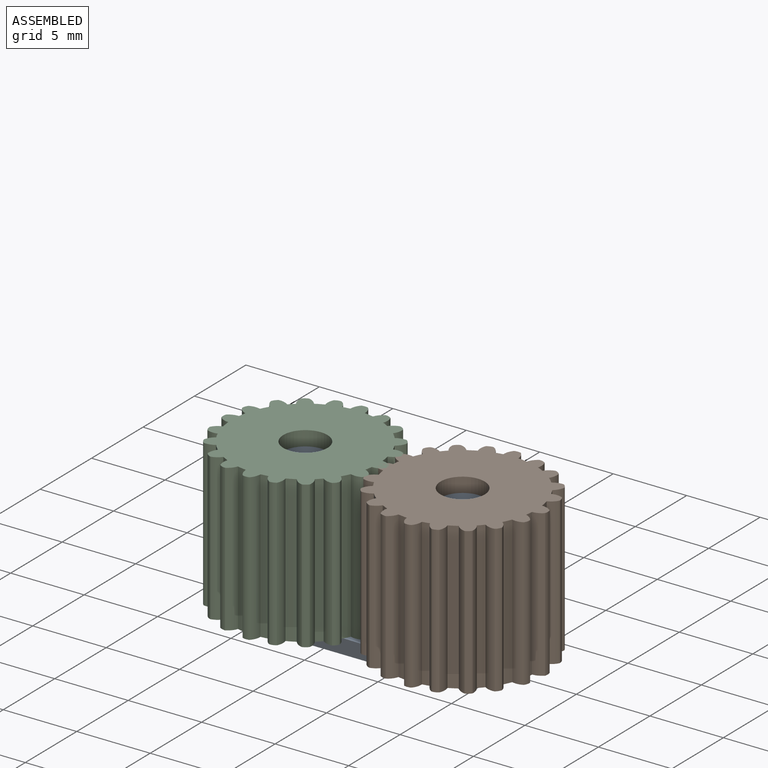
[diagram: assembled view]
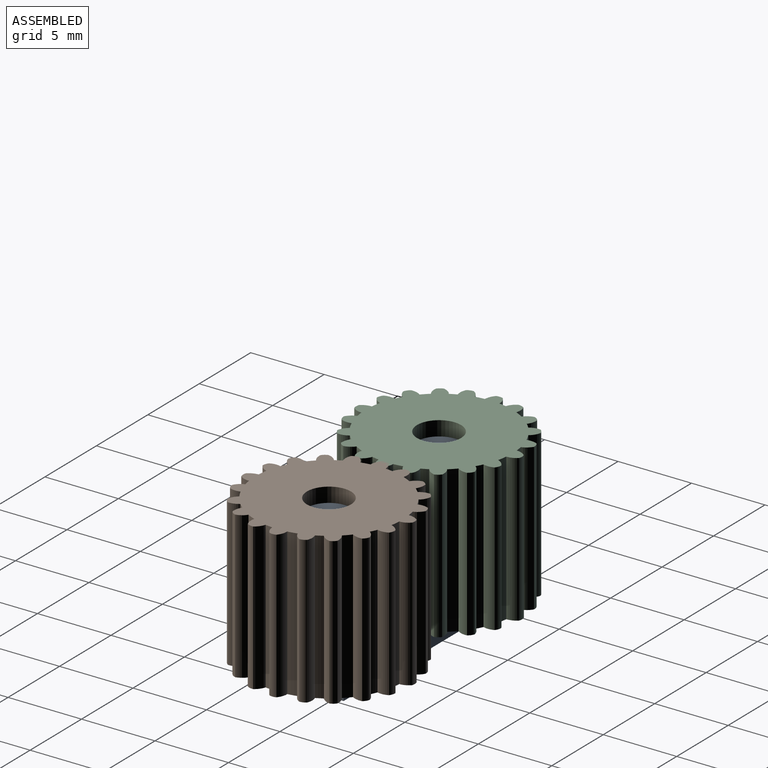
[diagram: assembled view, second angle]
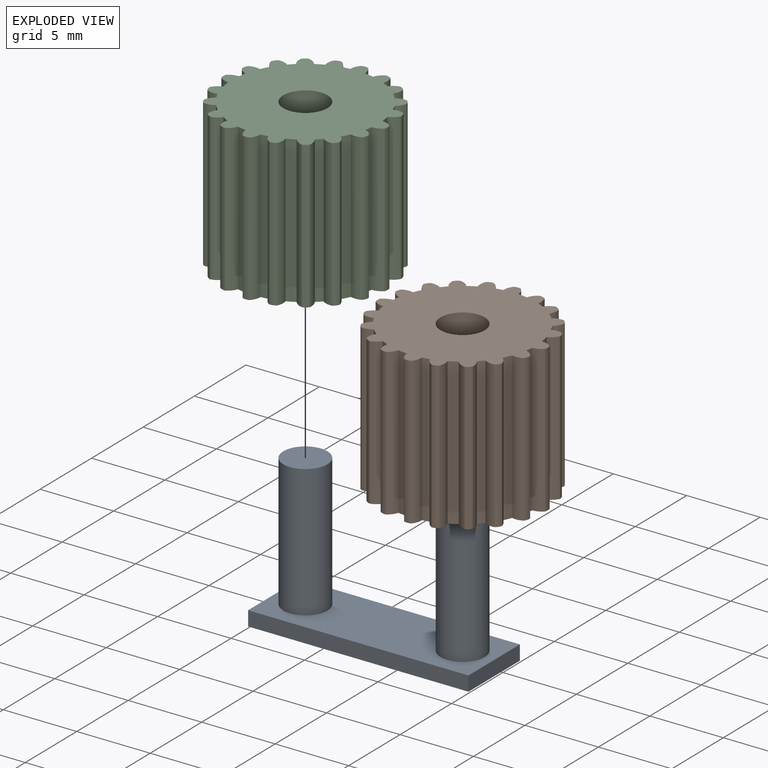
[diagram: exploded view]
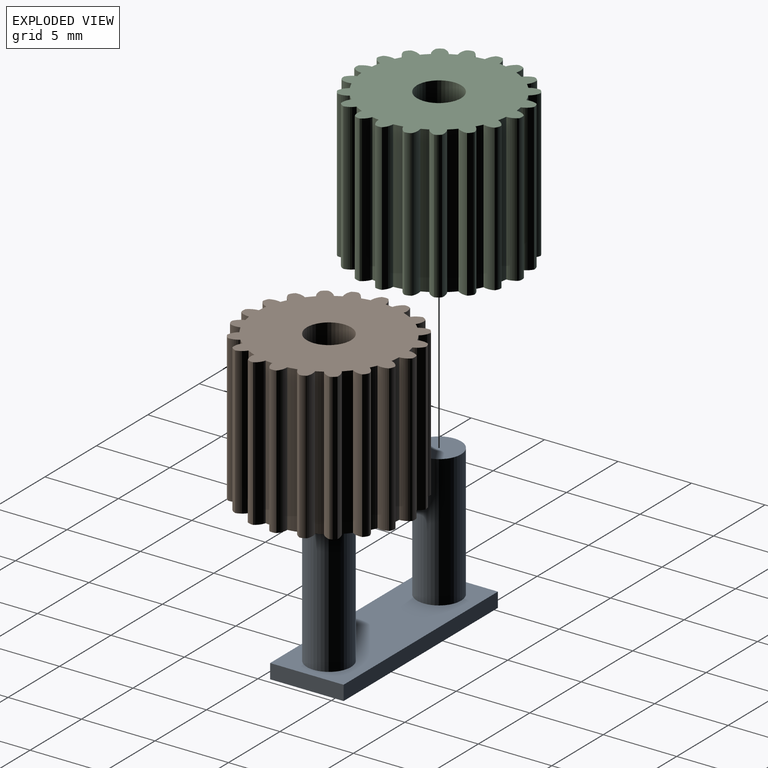
[diagram: exploded view, second angle]
ASSEMBLY  parts=3 mates=2
PART A: 10 faces, bbox 15x5x10 mm
  f0: plane 15x1mm, normal (0,1,0), area 15mm2, adj f1,f3,f4,f5
  f1: plane 5x1mm, normal (-1,0,0), area 5mm2, adj f0,f2,f4,f5
  f2: plane 15x1mm, normal (0,-1,0), area 15mm2, adj f1,f3,f4,f5
  f3: plane 5x1mm, normal (1,0,0), area 5mm2, adj f0,f2,f4,f5
  f4: plane 15x5mm, normal (0,0,1), area 60.9mm2, adj f0,f1,f2,f3,f6,f8
  f5: plane 15x5mm, normal (0,0,-1), area 75mm2, adj f0,f1,f2,f3
  f6: cylinder r=1.5mm len=9mm, axis (0,0,-1), area 84.8mm2, adj f4,f7
  f7: plane 3x3mm, normal (0,0,1), area 7.1mm2, adj f6
  f8: cylinder r=1.5mm len=9mm, axis (0,0,-1), area 84.8mm2, adj f4,f9
  f9: plane 3x3mm, normal (0,0,1), area 7.1mm2, adj f8
PART B: 83 faces, bbox 11.4x11.4x10 mm
  f0: cylinder r=5mm len=10mm, axis (0,0,-1), area 5mm2, adj f21,f22,f78,f80
  f1: cylinder r=5mm len=10mm, axis (0,0,-1), area 6.4mm2, adj f21,f22,f28,f79
  f2: cylinder r=5mm len=10mm, axis (0,0,-1), area 5mm2, adj f21,f22,f72,f74
  f3: cylinder r=5mm len=10mm, axis (0,0,-1), area 6.4mm2, adj f21,f22,f73,f82
  f4: cylinder r=5mm len=10mm, axis (0,0,-1), area 5mm2, adj f21,f22,f66,f68
  f5: cylinder r=5mm len=10mm, axis (0,0,-1), area 6.4mm2, adj f21,f22,f67,f76
  f6: cylinder r=5mm len=10mm, axis (0,0,-1), area 5mm2, adj f21,f22,f60,f62
  f7: cylinder r=5mm len=10mm, axis (0,0,-1), area 6.4mm2, adj f21,f22,f61,f70
  f8: cylinder r=5mm len=10mm, axis (0,0,-1), area 5mm2, adj f21,f22,f54,f56
  f9: cylinder r=5mm len=10mm, axis (0,0,-1), area 6.4mm2, adj f21,f22,f55,f64
  f10: cylinder r=5mm len=10mm, axis (0,0,-1), area 5mm2, adj f21,f22,f48,f50
  f11: cylinder r=5mm len=10mm, axis (0,0,-1), area 6.4mm2, adj f21,f22,f49,f58
  f12: cylinder r=5mm len=10mm, axis (0,0,-1), area 5mm2, adj f21,f22,f42,f44
  f13: cylinder r=5mm len=10mm, axis (0,0,-1), area 6.4mm2, adj f21,f22,f43,f52
  f14: cylinder r=5mm len=10mm, axis (0,0,-1), area 5mm2, adj f21,f22,f36,f38
  f15: cylinder r=5mm len=10mm, axis (0,0,-1), area 6.4mm2, adj f21,f22,f37,f46
  f16: cylinder r=5mm len=10mm, axis (0,0,-1), area 5mm2, adj f21,f22,f30,f32
  f17: cylinder r=5mm len=10mm, axis (0,0,-1), area 6.4mm2, adj f21,f22,f31,f40
  f18: cylinder r=5mm len=10mm, axis (0,0,-1), area 5mm2, adj f21,f22,f24,f26
  f19: cylinder r=5mm len=10mm, axis (0,0,-1), area 6.4mm2, adj f21,f22,f25,f34
  f20: cylinder r=1.5mm len=10mm, axis (0,0,-1), area 94.2mm2, adj f21,f22
  f21: plane 11.4x11.4mm, normal (0,0,1), area 82.8mm2, adj f0,f1,f2,f3,f4,f5,f6,f7
  f22: plane 11.4x11.4mm, normal (0,0,-1), area 82.8mm2, adj f0,f1,f2,f3,f4,f5,f6,f7
  f23: cylinder r=0.7mm len=10mm, axis (0,0,-1), area 4.6mm2, adj f21,f22,f24,f25
  f24: cylinder r=1mm len=10mm, axis (0,0,-1), area 7.6mm2, adj f18,f21,f22,f23
  f25: cylinder r=1mm len=10mm, axis (0,0,-1), area 7.6mm2, adj f19,f21,f22,f23
  f26: cylinder r=1mm len=10mm, axis (0,0,-1), area 7.6mm2, adj f18,f21,f22,f27
  f27: cylinder r=0.7mm len=10mm, axis (0,0,-1), area 4.6mm2, adj f21,f22,f26,f28
  f28: cylinder r=1mm len=10mm, axis (0,0,-1), area 7.6mm2, adj f1,f21,f22,f27
  f29: cylinder r=0.7mm len=10mm, axis (0,0,-1), area 4.6mm2, adj f21,f22,f30,f31
  f30: cylinder r=1mm len=10mm, axis (0,0,-1), area 7.6mm2, adj f16,f21,f22,f29
  f31: cylinder r=1mm len=10mm, axis (0,0,-1), area 7.6mm2, adj f17,f21,f22,f29
  f32: cylinder r=1mm len=10mm, axis (0,0,-1), area 7.6mm2, adj f16,f21,f22,f33
  f33: cylinder r=0.7mm len=10mm, axis (0,0,-1), area 4.6mm2, adj f21,f22,f32,f34
  f34: cylinder r=1mm len=10mm, axis (0,0,-1), area 7.6mm2, adj f19,f21,f22,f33
  f35: cylinder r=0.7mm len=10mm, axis (0,0,-1), area 4.6mm2, adj f21,f22,f36,f37
  f36: cylinder r=1mm len=10mm, axis (0,0,-1), area 7.6mm2, adj f14,f21,f22,f35
  f37: cylinder r=1mm len=10mm, axis (0,0,-1), area 7.6mm2, adj f15,f21,f22,f35
  f38: cylinder r=1mm len=10mm, axis (0,0,-1), area 7.6mm2, adj f14,f21,f22,f39
  f39: cylinder r=0.7mm len=10mm, axis (0,0,-1), area 4.6mm2, adj f21,f22,f38,f40
  f40: cylinder r=1mm len=10mm, axis (0,0,-1), area 7.6mm2, adj f17,f21,f22,f39
  f41: cylinder r=0.7mm len=10mm, axis (0,0,-1), area 4.6mm2, adj f21,f22,f42,f43
  f42: cylinder r=1mm len=10mm, axis (0,0,-1), area 7.6mm2, adj f12,f21,f22,f41
  f43: cylinder r=1mm len=10mm, axis (0,0,-1), area 7.6mm2, adj f13,f21,f22,f41
  f44: cylinder r=1mm len=10mm, axis (0,0,-1), area 7.6mm2, adj f12,f21,f22,f45
  f45: cylinder r=0.7mm len=10mm, axis (0,0,-1), area 4.6mm2, adj f21,f22,f44,f46
  f46: cylinder r=1mm len=10mm, axis (0,0,-1), area 7.6mm2, adj f15,f21,f22,f45
  f47: cylinder r=0.7mm len=10mm, axis (0,0,-1), area 4.6mm2, adj f21,f22,f48,f49
  f48: cylinder r=1mm len=10mm, axis (0,0,-1), area 7.6mm2, adj f10,f21,f22,f47
  f49: cylinder r=1mm len=10mm, axis (0,0,-1), area 7.6mm2, adj f11,f21,f22,f47
  f50: cylinder r=1mm len=10mm, axis (0,0,-1), area 7.6mm2, adj f10,f21,f22,f51
  f51: cylinder r=0.7mm len=10mm, axis (0,0,-1), area 4.6mm2, adj f21,f22,f50,f52
  f52: cylinder r=1mm len=10mm, axis (0,0,-1), area 7.6mm2, adj f13,f21,f22,f51
  f53: cylinder r=0.7mm len=10mm, axis (0,0,-1), area 4.6mm2, adj f21,f22,f54,f55
  f54: cylinder r=1mm len=10mm, axis (0,0,-1), area 7.6mm2, adj f8,f21,f22,f53
  f55: cylinder r=1mm len=10mm, axis (0,0,-1), area 7.6mm2, adj f9,f21,f22,f53
  f56: cylinder r=1mm len=10mm, axis (0,0,-1), area 7.6mm2, adj f8,f21,f22,f57
  f57: cylinder r=0.7mm len=10mm, axis (0,0,-1), area 4.6mm2, adj f21,f22,f56,f58
  f58: cylinder r=1mm len=10mm, axis (0,0,-1), area 7.6mm2, adj f11,f21,f22,f57
  f59: cylinder r=0.7mm len=10mm, axis (0,0,-1), area 4.6mm2, adj f21,f22,f60,f61
  f60: cylinder r=1mm len=10mm, axis (0,0,-1), area 7.6mm2, adj f6,f21,f22,f59
  f61: cylinder r=1mm len=10mm, axis (0,0,-1), area 7.6mm2, adj f7,f21,f22,f59
  f62: cylinder r=1mm len=10mm, axis (0,0,-1), area 7.6mm2, adj f6,f21,f22,f63
  f63: cylinder r=0.7mm len=10mm, axis (0,0,-1), area 4.6mm2, adj f21,f22,f62,f64
  f64: cylinder r=1mm len=10mm, axis (0,0,-1), area 7.6mm2, adj f9,f21,f22,f63
  f65: cylinder r=0.7mm len=10mm, axis (0,0,-1), area 4.6mm2, adj f21,f22,f66,f67
  f66: cylinder r=1mm len=10mm, axis (0,0,-1), area 7.6mm2, adj f4,f21,f22,f65
  f67: cylinder r=1mm len=10mm, axis (0,0,-1), area 7.6mm2, adj f5,f21,f22,f65
  f68: cylinder r=1mm len=10mm, axis (0,0,-1), area 7.6mm2, adj f4,f21,f22,f69
  f69: cylinder r=0.7mm len=10mm, axis (0,0,-1), area 4.6mm2, adj f21,f22,f68,f70
  f70: cylinder r=1mm len=10mm, axis (0,0,-1), area 7.6mm2, adj f7,f21,f22,f69
  f71: cylinder r=0.7mm len=10mm, axis (0,0,-1), area 4.6mm2, adj f21,f22,f72,f73
  f72: cylinder r=1mm len=10mm, axis (0,0,-1), area 7.6mm2, adj f2,f21,f22,f71
  f73: cylinder r=1mm len=10mm, axis (0,0,-1), area 7.6mm2, adj f3,f21,f22,f71
  f74: cylinder r=1mm len=10mm, axis (0,0,-1), area 7.6mm2, adj f2,f21,f22,f75
  f75: cylinder r=0.7mm len=10mm, axis (0,0,-1), area 4.6mm2, adj f21,f22,f74,f76
  f76: cylinder r=1mm len=10mm, axis (0,0,-1), area 7.6mm2, adj f5,f21,f22,f75
  f77: cylinder r=0.7mm len=10mm, axis (0,0,-1), area 4.6mm2, adj f21,f22,f78,f79
  f78: cylinder r=1mm len=10mm, axis (0,0,-1), area 7.6mm2, adj f0,f21,f22,f77
  f79: cylinder r=1mm len=10mm, axis (0,0,-1), area 7.6mm2, adj f1,f21,f22,f77
  f80: cylinder r=1mm len=10mm, axis (0,0,-1), area 7.6mm2, adj f0,f21,f22,f81
  f81: cylinder r=0.7mm len=10mm, axis (0,0,-1), area 4.6mm2, adj f21,f22,f80,f82
  f82: cylinder r=1mm len=10mm, axis (0,0,-1), area 7.6mm2, adj f3,f21,f22,f81
PART C: 83 faces, bbox 11.4x11.4x10 mm
  f0: cylinder r=5mm len=10mm, axis (0,0,-1), area 5mm2, adj f21,f22,f78,f80
  f1: cylinder r=5mm len=10mm, axis (0,0,-1), area 6.4mm2, adj f21,f22,f28,f79
  f2: cylinder r=5mm len=10mm, axis (0,0,-1), area 5mm2, adj f21,f22,f72,f74
  f3: cylinder r=5mm len=10mm, axis (0,0,-1), area 6.4mm2, adj f21,f22,f73,f82
  f4: cylinder r=5mm len=10mm, axis (0,0,-1), area 5mm2, adj f21,f22,f66,f68
  f5: cylinder r=5mm len=10mm, axis (0,0,-1), area 6.4mm2, adj f21,f22,f67,f76
  f6: cylinder r=5mm len=10mm, axis (0,0,-1), area 5mm2, adj f21,f22,f60,f62
  f7: cylinder r=5mm len=10mm, axis (0,0,-1), area 6.4mm2, adj f21,f22,f61,f70
  f8: cylinder r=5mm len=10mm, axis (0,0,-1), area 5mm2, adj f21,f22,f54,f56
  f9: cylinder r=5mm len=10mm, axis (0,0,-1), area 6.4mm2, adj f21,f22,f55,f64
  f10: cylinder r=5mm len=10mm, axis (0,0,-1), area 5mm2, adj f21,f22,f48,f50
  f11: cylinder r=5mm len=10mm, axis (0,0,-1), area 6.4mm2, adj f21,f22,f49,f58
  f12: cylinder r=5mm len=10mm, axis (0,0,-1), area 5mm2, adj f21,f22,f42,f44
  f13: cylinder r=5mm len=10mm, axis (0,0,-1), area 6.4mm2, adj f21,f22,f43,f52
  f14: cylinder r=5mm len=10mm, axis (0,0,-1), area 5mm2, adj f21,f22,f36,f38
  f15: cylinder r=5mm len=10mm, axis (0,0,-1), area 6.4mm2, adj f21,f22,f37,f46
  f16: cylinder r=5mm len=10mm, axis (0,0,-1), area 5mm2, adj f21,f22,f30,f32
  f17: cylinder r=5mm len=10mm, axis (0,0,-1), area 6.4mm2, adj f21,f22,f31,f40
  f18: cylinder r=5mm len=10mm, axis (0,0,-1), area 5mm2, adj f21,f22,f24,f26
  f19: cylinder r=5mm len=10mm, axis (0,0,-1), area 6.4mm2, adj f21,f22,f25,f34
  f20: cylinder r=1.5mm len=10mm, axis (0,0,-1), area 94.2mm2, adj f21,f22
  f21: plane 11.4x11.4mm, normal (0,0,1), area 82.8mm2, adj f0,f1,f2,f3,f4,f5,f6,f7
  f22: plane 11.4x11.4mm, normal (0,0,-1), area 82.8mm2, adj f0,f1,f2,f3,f4,f5,f6,f7
  f23: cylinder r=0.7mm len=10mm, axis (0,0,-1), area 4.6mm2, adj f21,f22,f24,f25
  f24: cylinder r=1mm len=10mm, axis (0,0,-1), area 7.6mm2, adj f18,f21,f22,f23
  f25: cylinder r=1mm len=10mm, axis (0,0,-1), area 7.6mm2, adj f19,f21,f22,f23
  f26: cylinder r=1mm len=10mm, axis (0,0,-1), area 7.6mm2, adj f18,f21,f22,f27
  f27: cylinder r=0.7mm len=10mm, axis (0,0,-1), area 4.6mm2, adj f21,f22,f26,f28
  f28: cylinder r=1mm len=10mm, axis (0,0,-1), area 7.6mm2, adj f1,f21,f22,f27
  f29: cylinder r=0.7mm len=10mm, axis (0,0,-1), area 4.6mm2, adj f21,f22,f30,f31
  f30: cylinder r=1mm len=10mm, axis (0,0,-1), area 7.6mm2, adj f16,f21,f22,f29
  f31: cylinder r=1mm len=10mm, axis (0,0,-1), area 7.6mm2, adj f17,f21,f22,f29
  f32: cylinder r=1mm len=10mm, axis (0,0,-1), area 7.6mm2, adj f16,f21,f22,f33
  f33: cylinder r=0.7mm len=10mm, axis (0,0,-1), area 4.6mm2, adj f21,f22,f32,f34
  f34: cylinder r=1mm len=10mm, axis (0,0,-1), area 7.6mm2, adj f19,f21,f22,f33
  f35: cylinder r=0.7mm len=10mm, axis (0,0,-1), area 4.6mm2, adj f21,f22,f36,f37
  f36: cylinder r=1mm len=10mm, axis (0,0,-1), area 7.6mm2, adj f14,f21,f22,f35
  f37: cylinder r=1mm len=10mm, axis (0,0,-1), area 7.6mm2, adj f15,f21,f22,f35
  f38: cylinder r=1mm len=10mm, axis (0,0,-1), area 7.6mm2, adj f14,f21,f22,f39
  f39: cylinder r=0.7mm len=10mm, axis (0,0,-1), area 4.6mm2, adj f21,f22,f38,f40
  f40: cylinder r=1mm len=10mm, axis (0,0,-1), area 7.6mm2, adj f17,f21,f22,f39
  f41: cylinder r=0.7mm len=10mm, axis (0,0,-1), area 4.6mm2, adj f21,f22,f42,f43
  f42: cylinder r=1mm len=10mm, axis (0,0,-1), area 7.6mm2, adj f12,f21,f22,f41
  f43: cylinder r=1mm len=10mm, axis (0,0,-1), area 7.6mm2, adj f13,f21,f22,f41
  f44: cylinder r=1mm len=10mm, axis (0,0,-1), area 7.6mm2, adj f12,f21,f22,f45
  f45: cylinder r=0.7mm len=10mm, axis (0,0,-1), area 4.6mm2, adj f21,f22,f44,f46
  f46: cylinder r=1mm len=10mm, axis (0,0,-1), area 7.6mm2, adj f15,f21,f22,f45
  f47: cylinder r=0.7mm len=10mm, axis (0,0,-1), area 4.6mm2, adj f21,f22,f48,f49
  f48: cylinder r=1mm len=10mm, axis (0,0,-1), area 7.6mm2, adj f10,f21,f22,f47
  f49: cylinder r=1mm len=10mm, axis (0,0,-1), area 7.6mm2, adj f11,f21,f22,f47
  f50: cylinder r=1mm len=10mm, axis (0,0,-1), area 7.6mm2, adj f10,f21,f22,f51
  f51: cylinder r=0.7mm len=10mm, axis (0,0,-1), area 4.6mm2, adj f21,f22,f50,f52
  f52: cylinder r=1mm len=10mm, axis (0,0,-1), area 7.6mm2, adj f13,f21,f22,f51
  f53: cylinder r=0.7mm len=10mm, axis (0,0,-1), area 4.6mm2, adj f21,f22,f54,f55
  f54: cylinder r=1mm len=10mm, axis (0,0,-1), area 7.6mm2, adj f8,f21,f22,f53
  f55: cylinder r=1mm len=10mm, axis (0,0,-1), area 7.6mm2, adj f9,f21,f22,f53
  f56: cylinder r=1mm len=10mm, axis (0,0,-1), area 7.6mm2, adj f8,f21,f22,f57
  f57: cylinder r=0.7mm len=10mm, axis (0,0,-1), area 4.6mm2, adj f21,f22,f56,f58
  f58: cylinder r=1mm len=10mm, axis (0,0,-1), area 7.6mm2, adj f11,f21,f22,f57
  f59: cylinder r=0.7mm len=10mm, axis (0,0,-1), area 4.6mm2, adj f21,f22,f60,f61
  f60: cylinder r=1mm len=10mm, axis (0,0,-1), area 7.6mm2, adj f6,f21,f22,f59
  f61: cylinder r=1mm len=10mm, axis (0,0,-1), area 7.6mm2, adj f7,f21,f22,f59
  f62: cylinder r=1mm len=10mm, axis (0,0,-1), area 7.6mm2, adj f6,f21,f22,f63
  f63: cylinder r=0.7mm len=10mm, axis (0,0,-1), area 4.6mm2, adj f21,f22,f62,f64
  f64: cylinder r=1mm len=10mm, axis (0,0,-1), area 7.6mm2, adj f9,f21,f22,f63
  f65: cylinder r=0.7mm len=10mm, axis (0,0,-1), area 4.6mm2, adj f21,f22,f66,f67
  f66: cylinder r=1mm len=10mm, axis (0,0,-1), area 7.6mm2, adj f4,f21,f22,f65
  f67: cylinder r=1mm len=10mm, axis (0,0,-1), area 7.6mm2, adj f5,f21,f22,f65
  f68: cylinder r=1mm len=10mm, axis (0,0,-1), area 7.6mm2, adj f4,f21,f22,f69
  f69: cylinder r=0.7mm len=10mm, axis (0,0,-1), area 4.6mm2, adj f21,f22,f68,f70
  f70: cylinder r=1mm len=10mm, axis (0,0,-1), area 7.6mm2, adj f7,f21,f22,f69
  f71: cylinder r=0.7mm len=10mm, axis (0,0,-1), area 4.6mm2, adj f21,f22,f72,f73
  f72: cylinder r=1mm len=10mm, axis (0,0,-1), area 7.6mm2, adj f2,f21,f22,f71
  f73: cylinder r=1mm len=10mm, axis (0,0,-1), area 7.6mm2, adj f3,f21,f22,f71
  f74: cylinder r=1mm len=10mm, axis (0,0,-1), area 7.6mm2, adj f2,f21,f22,f75
  f75: cylinder r=0.7mm len=10mm, axis (0,0,-1), area 4.6mm2, adj f21,f22,f74,f76
  f76: cylinder r=1mm len=10mm, axis (0,0,-1), area 7.6mm2, adj f5,f21,f22,f75
  f77: cylinder r=0.7mm len=10mm, axis (0,0,-1), area 4.6mm2, adj f21,f22,f78,f79
  f78: cylinder r=1mm len=10mm, axis (0,0,-1), area 7.6mm2, adj f0,f21,f22,f77
  f79: cylinder r=1mm len=10mm, axis (0,0,-1), area 7.6mm2, adj f1,f21,f22,f77
  f80: cylinder r=1mm len=10mm, axis (0,0,-1), area 7.6mm2, adj f0,f21,f22,f81
  f81: cylinder r=0.7mm len=10mm, axis (0,0,-1), area 4.6mm2, adj f21,f22,f80,f82
  f82: cylinder r=1mm len=10mm, axis (0,0,-1), area 7.6mm2, adj f3,f21,f22,f81
PLACE A t=(5.39,1.1,-0.93)mm fixed
PLACE B rot(axis=(0,0,1),55.5deg) t=(43.24,3.6,0.07)mm
PLACE C rot(axis=(0,0,-1),55.5deg) t=(23.14,-2.85,0.07)mm
MATE revolute B.f20 <-> A.f8  axis (0,0,-1) through (43.24,3.6,0.07)mm
MATE revolute C.f0 <-> A.f6  axis (0,0,-1) through (32.54,3.6,0.07)mm
